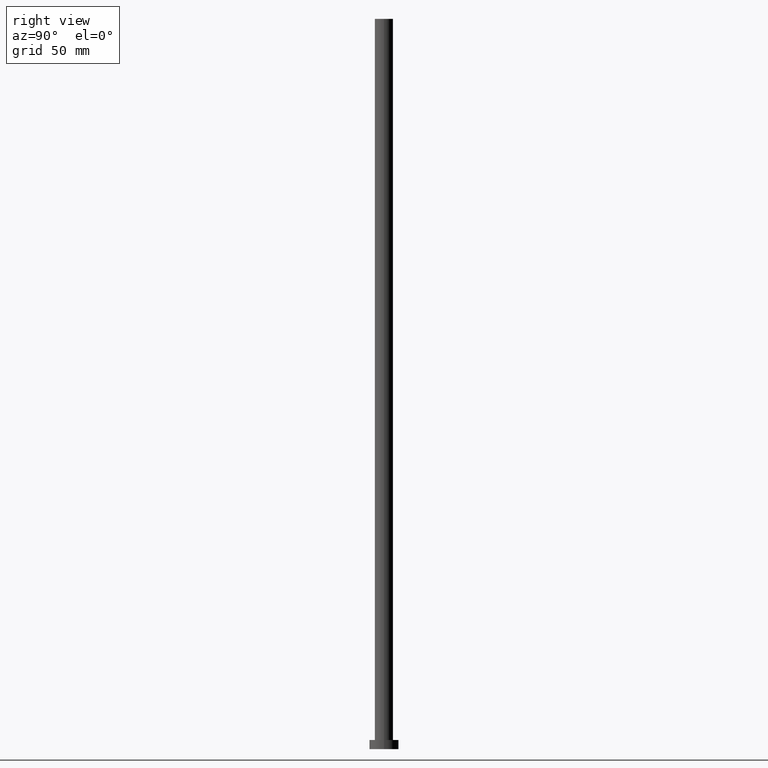
[diagram: clean part render]
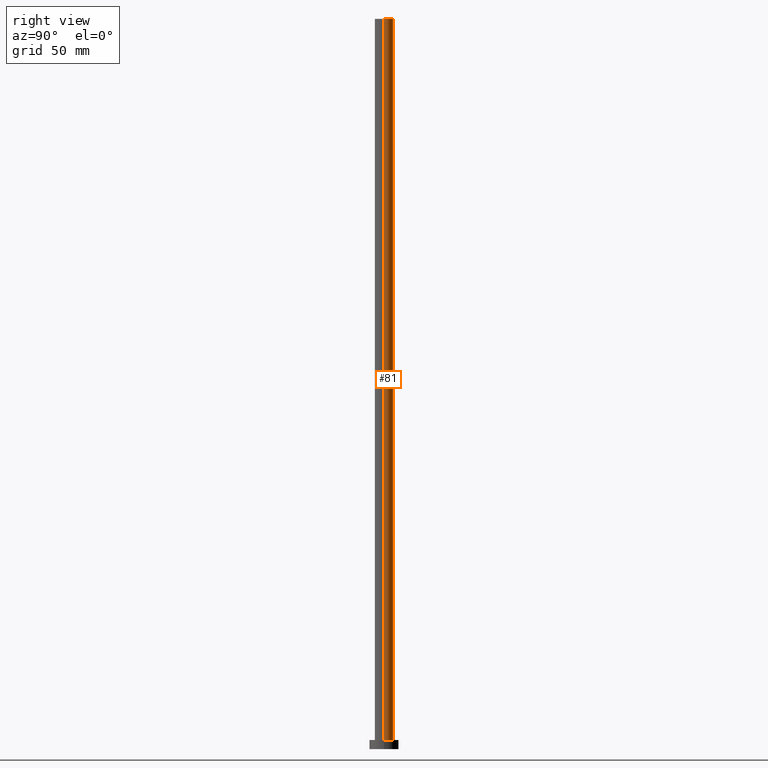
[diagram: same view with one face highlighted and labeled with its STEP entity id]
A machine part, right view. The second image highlights one B-rep face of the part: STEP entity #81.
In plain terms, the highlighted cylindrical surface (edge-blend (fillet) strip) has radius 5 mm, axis along (-0, -0, -1).
Its self-contained STEP definition (entity closure, byte-faithful):
#7 = CARTESIAN_POINT ( 'NONE',  ( 0.000000000000000000, 0.000000000000000000, 400.0000000000000000 ) ) ;
#10 = ORIENTED_EDGE ( 'NONE', *, *, #224, .T. ) ;
#17 = CIRCLE ( 'NONE', #157, 5.000000000000000000 ) ;
#21 = CARTESIAN_POINT ( 'NONE',  ( -5.000000000000000000, 0.000000000000000000, 400.0000000000000000 ) ) ;
#26 = EDGE_CURVE ( 'NONE', #246, #221, #237, .T. ) ;
#37 = DIRECTION ( 'NONE',  ( -0.000000000000000000, -0.000000000000000000, -1.000000000000000000 ) ) ;
#40 = ORIENTED_EDGE ( 'NONE', *, *, #126, .T. ) ;
#47 = FACE_OUTER_BOUND ( 'NONE', #190, .T. ) ;
#48 = CARTESIAN_POINT ( 'NONE',  ( 0.000000000000000000, 0.000000000000000000, 400.0000000000000000 ) ) ;
#49 = VECTOR ( 'NONE', #93, 1000.000000000000000 ) ;
#56 = CARTESIAN_POINT ( 'NONE',  ( -5.000000000000000000, 0.000000000000000000, 5.000000000000000000 ) ) ;
#61 = CYLINDRICAL_SURFACE ( 'NONE', #210, 5.000000000000000000 ) ;
#76 = DIRECTION ( 'NONE',  ( 0.000000000000000000, 0.000000000000000000, 1.000000000000000000 ) ) ;
#81 = ADVANCED_FACE ( 'NONE', ( #47 ), #61, .T. ) ;
#85 = EDGE_CURVE ( 'NONE', #221, #244, #178, .T. ) ;
#93 = DIRECTION ( 'NONE',  ( -0.000000000000000000, -0.000000000000000000, -1.000000000000000000 ) ) ;
#98 = CARTESIAN_POINT ( 'NONE',  ( 0.000000000000000000, 0.000000000000000000, 5.000000000000000000 ) ) ;
#104 = DIRECTION ( 'NONE',  ( 1.000000000000000000, 0.000000000000000000, 0.000000000000000000 ) ) ;
#114 = VERTEX_POINT ( 'NONE', #148 ) ;
#117 = DIRECTION ( 'NONE',  ( 0.000000000000000000, 0.000000000000000000, 1.000000000000000000 ) ) ;
#123 = VECTOR ( 'NONE', #37, 1000.000000000000000 ) ;
#126 = EDGE_CURVE ( 'NONE', #246, #114, #133, .T. ) ;
#129 = DIRECTION ( 'NONE',  ( -0.000000000000000000, -0.000000000000000000, -1.000000000000000000 ) ) ;
#133 = LINE ( 'NONE', #238, #49 ) ;
#134 = ORIENTED_EDGE ( 'NONE', *, *, #85, .F. ) ;
#148 = CARTESIAN_POINT ( 'NONE',  ( 5.000000000000000000, 6.123233995736765296E-16, 5.000000000000000000 ) ) ;
#157 = AXIS2_PLACEMENT_3D ( 'NONE', #98, #76, #104 ) ;
#160 = CARTESIAN_POINT ( 'NONE',  ( -5.000000000000000000, 0.000000000000000000, 400.0000000000000000 ) ) ;
#178 = LINE ( 'NONE', #160, #123 ) ;
#190 = EDGE_LOOP ( 'NONE', ( #250, #40, #10, #134 ) ) ;
#195 = CARTESIAN_POINT ( 'NONE',  ( 5.000000000000000000, 6.123233995736765296E-16, 400.0000000000000000 ) ) ;
#196 = AXIS2_PLACEMENT_3D ( 'NONE', #7, #117, #216 ) ;
#210 = AXIS2_PLACEMENT_3D ( 'NONE', #48, #129, #227 ) ;
#216 = DIRECTION ( 'NONE',  ( 1.000000000000000000, 0.000000000000000000, 0.000000000000000000 ) ) ;
#221 = VERTEX_POINT ( 'NONE', #21 ) ;
#224 = EDGE_CURVE ( 'NONE', #114, #244, #17, .T. ) ;
#227 = DIRECTION ( 'NONE',  ( -1.000000000000000000, 0.000000000000000000, 0.000000000000000000 ) ) ;
#237 = CIRCLE ( 'NONE', #196, 5.000000000000000000 ) ;
#238 = CARTESIAN_POINT ( 'NONE',  ( 5.000000000000000000, 6.123233995736765296E-16, 400.0000000000000000 ) ) ;
#244 = VERTEX_POINT ( 'NONE', #56 ) ;
#246 = VERTEX_POINT ( 'NONE', #195 ) ;
#250 = ORIENTED_EDGE ( 'NONE', *, *, #26, .F. ) ;